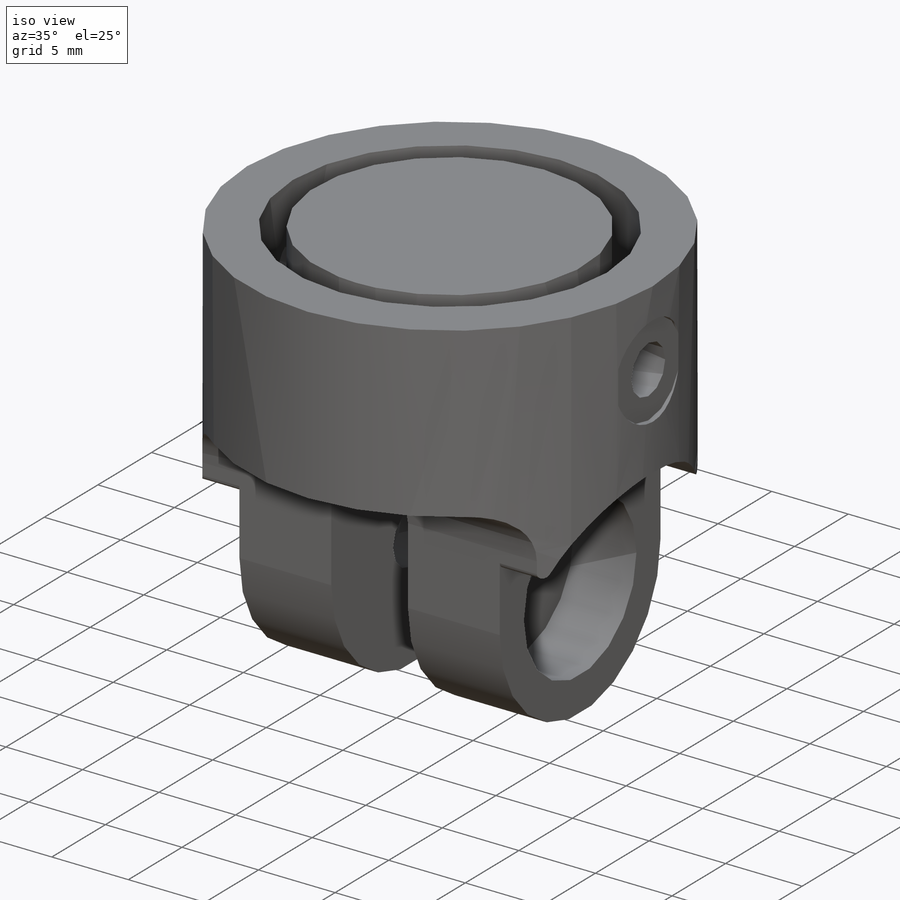
[diagram: iso view]
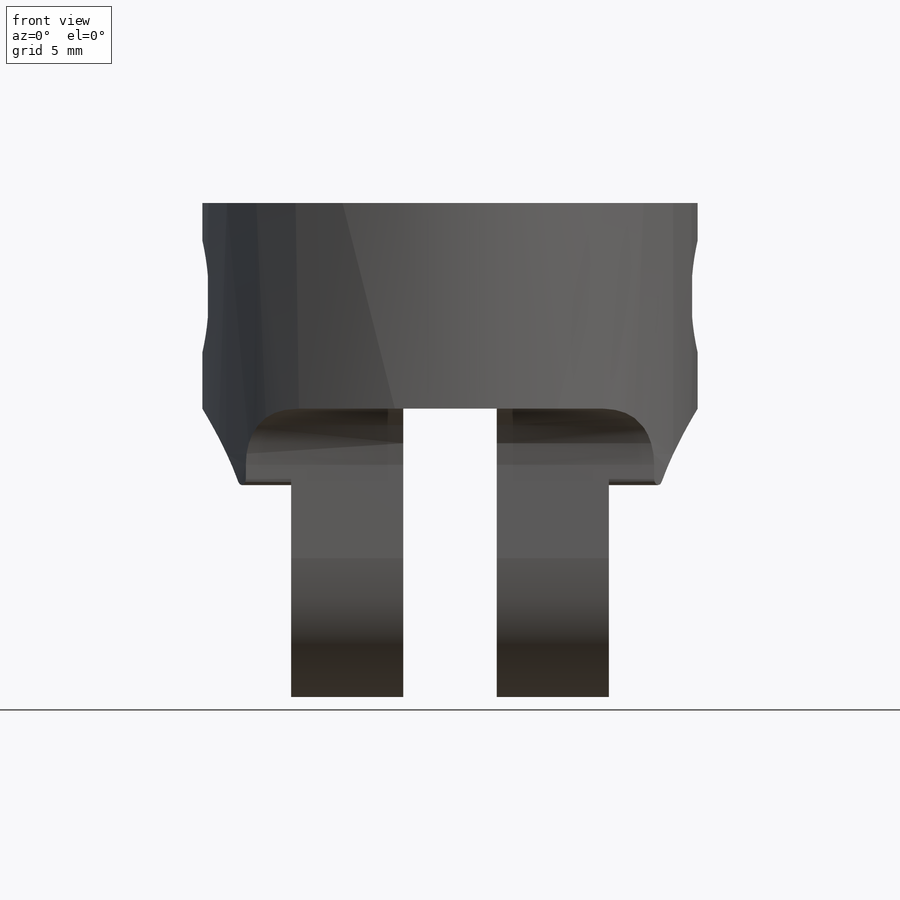
[diagram: front view]
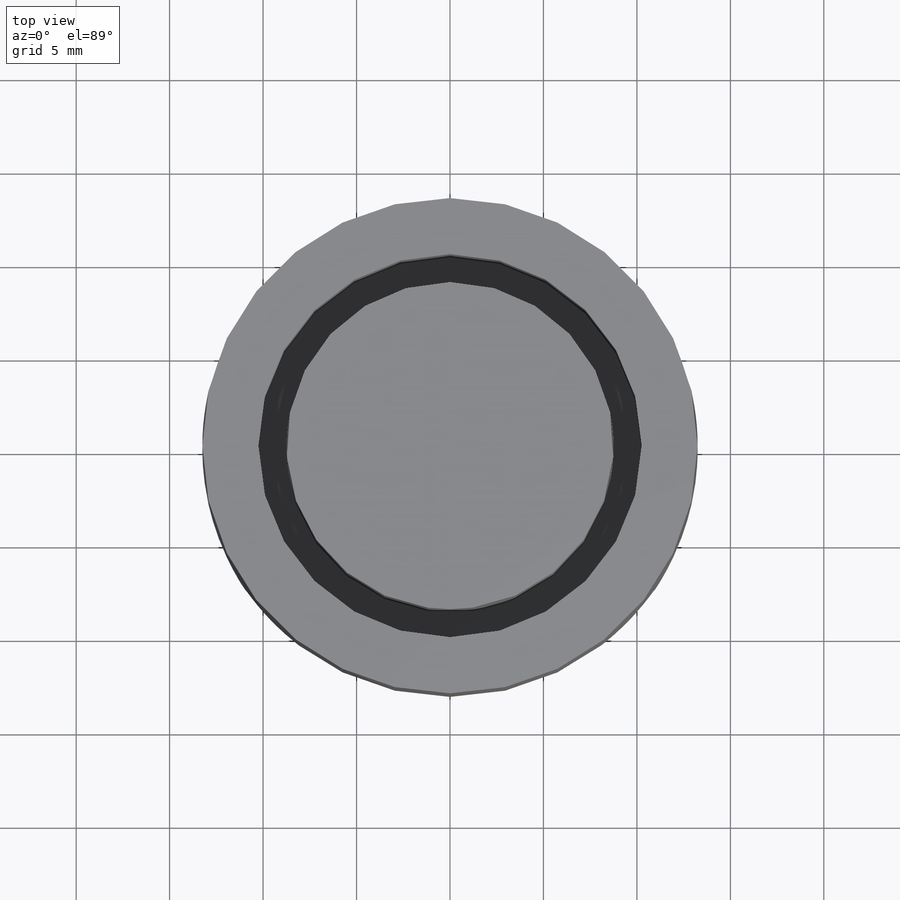
[diagram: top view]
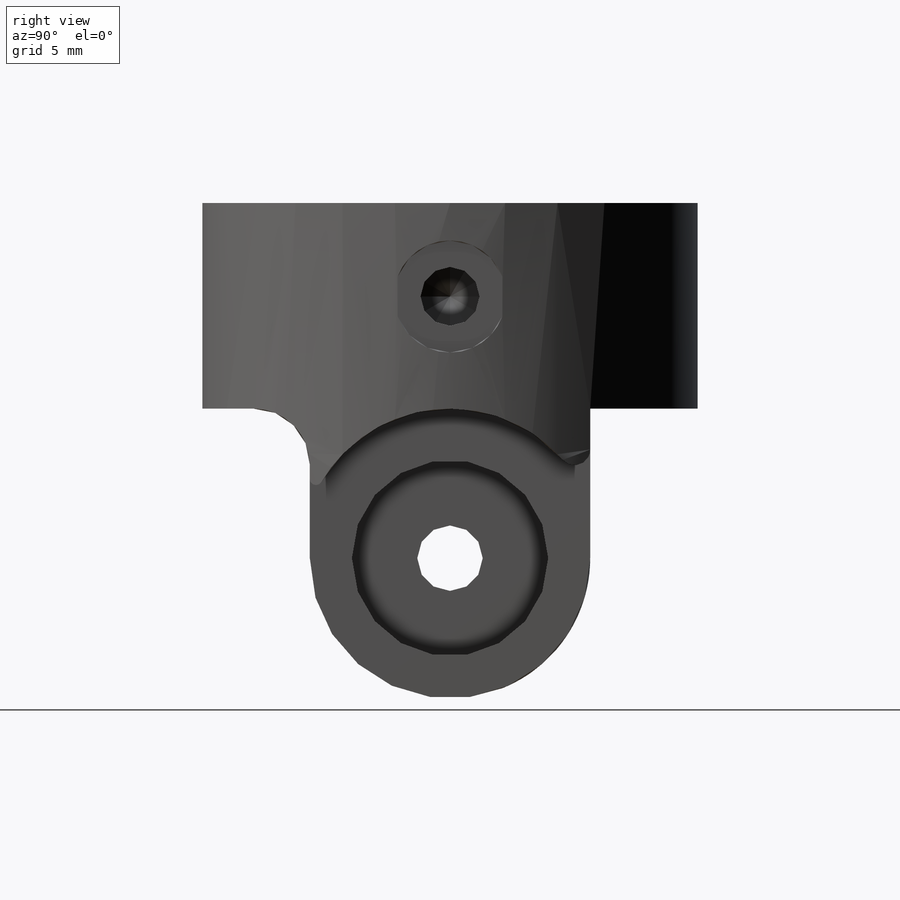
[diagram: right view]
SOLIDWORKS PART (.sldprt)
format: sldprt  version: not decoded by parser v0  size: 528,896 bytes
history: native  units: mm
features: sketch x16, cut_extrude x9, plane x8, extrude x4, mirror x2, material x1, hole x1, fillet x1 (+13 scaffold rows collapsed)
feature tree (55):
  scaffold x13  (default folders/planes/origin — collapsed)
  material  "PLA Black"
  sketch  "Sketch1"  dims[c1.D1=21.0mm c1.D2=~29.839096mm c2.D1=21.0mm c2.D3=~16.305082mm c2.D4=~16.992116mm c3.D1=18.8mm c3.D3=19.0mm c3.D2=3.0mm c4.D1=0.6mm c4.D3=2.0mm c4.D4=0.6mm c5.D1=1.5mm]
  extrude  "Boss-Extrude1"  Depth=10mm
  sketch  "Sketch3"
  extrude  "Boss-Extrude2"  Depth=1mm
  sketch  "Sketch4"  dims[D1=6.0mm D2=5.0mm D3=15.0mm]
  extrude  "Boss-Extrude3"  Depth=16mm
  sketch  "Sketch5"  dims[D1=3.5mm]
  cut_extrude  "Cut-Extrude1"  Depth=10mm
  sketch  "Sketch6"  dims[D1=10.5mm]
  cut_extrude  "Cut-Extrude2"  Depth=4.1mm
  mirror  "Mirror1"
  plane  "Plane9"  Offset=2.25mm
  sketch  "Sketch7"  dims[c1.D1=7.2mm c1.D2=~17.19437mm c2.D2=~44.365629deg c2.D3=8.0mm c3.D2=~6.18587mm c4.D2=~34.081013deg]
  plane  "Plane1"
  plane  "Plane2"
  plane  "Plane3"
  plane  "Plane5"
  plane  "Plane6"
  plane  "Plane7"
  sketch  "Sketch8"  dims[D1=1.65mm]
  cut_extrude  "Cut-Extrude5"  Depth=5.5mm
  sketch  "Sketch9"  dims[D1=1.65mm]
  cut_extrude  "Cut-Extrude3"  Depth=5.5mm
  sketch  "Sketch10"  dims[D1=1.65mm]
  sketch  "Sketch11"  dims[D1=1.65mm]
  sketch  "Sketch12"  dims[D1=1.65mm]
  sketch  "Sketch14"  dims[D1=1.65mm]
  cut_extrude  "Cut-Extrude6"  Depth=5.5mm
  cut_extrude  "Cut-Extrude7"  Depth=5.5mm
  cut_extrude  "Cut-Extrude8"  Depth=5.5mm
  cut_extrude  "Cut-Extrude9"  Depth=5.5mm
  plane  "Plane8"
  hole  "Tap Drill for M3 Helicoil1"  Diameter=3.15mm Depth=6mm
  sketch  "Sketch17"
  sketch  "Sketch18"  dims[hole-wizard template sketch: 46 standard entries collapsed; hole parameters kept: c15.Hole Dia.=3.15mm c15.Hole Depth=6.0mm c15.D3=~14.816244mm c15.Drill Angle=118.0deg]
  sketch  "Sketch20"  dims[D1=6.0mm]
  cut_extrude  "Cut-Extrude10"  Depth=0.3mm
  sketch  "Sketch21"  dims[c1.D1=1.0mm c1.D3=~5.844861mm c2.D1=~8.360548mm c2.D2=~10.246143mm c3.D2=45.0deg c3.D3=~9.682813mm c3.D1=~7.527785mm c4.D1=60.0deg c5.D1=~12.297157mm c6.D1=45.0deg c7.D1=~12.297157mm c8.D1=45.0deg c9.D1=~11.954045mm c10.D1=45.0deg c11.D1=~11.688805mm c12.D1=45.0deg c13.D1=~11.688805mm c14.D1=45.0deg c15.D1=~11.688805mm c16.D1=30.0deg c16.D2=~10.783257mm c17.D2=45.0deg c18.D2=~9.345913mm c19.D2=35.0deg c20.D2=~9.45614mm c21.D2=25.0deg c21.D3=7.5mm c21.D4=15.0mm c22.D2=~5.387517mm c23.D2=50.0deg c24.D2=~5.745333mm c25.D2=50.0deg]
  extrude  "Boss-Extrude4"  [1 undecoded]
  mirror  "Mirror2"
  fillet  "Fillet1"  Radius=3mm
decode coverage: 28 of 33 modeling features carry decoded parameters
note: ~ marks probable driven/reference dimensions
note: 1 parameter value undecoded
note: suppression state not decoded; provenance and decode notes live in map.json
